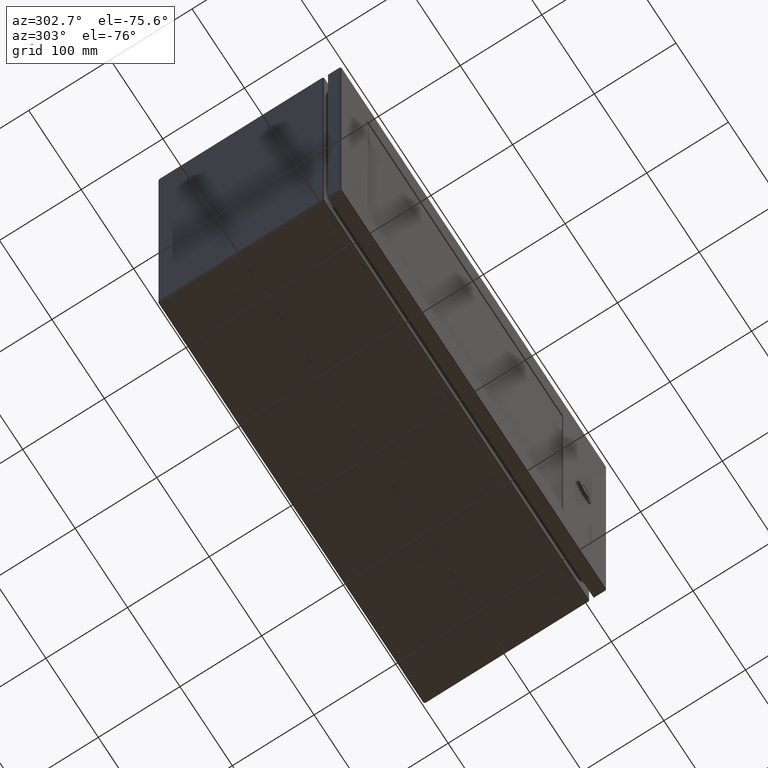
[diagram: clean part render]
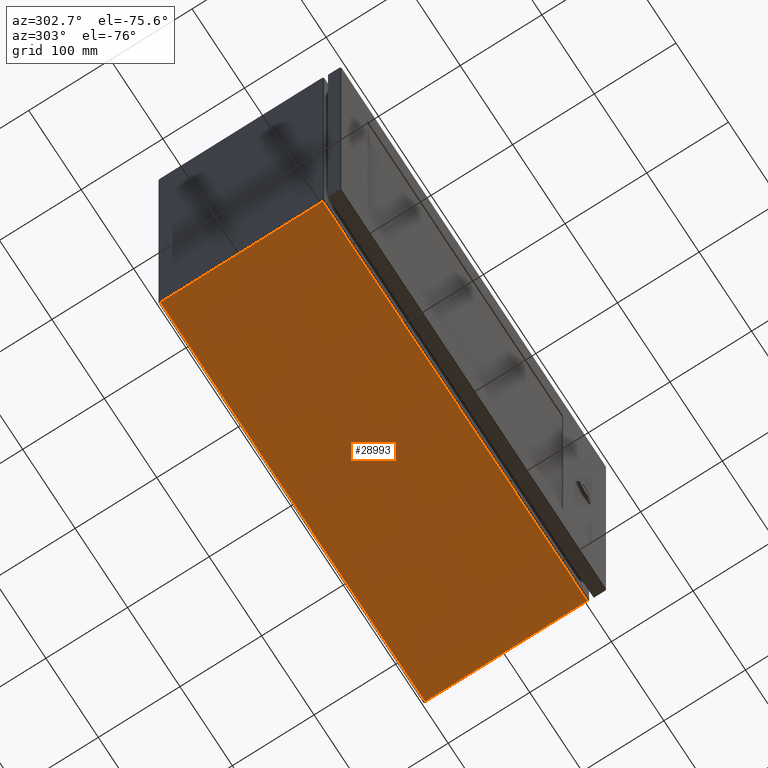
[diagram: same view with one face highlighted and labeled with its STEP entity id]
A machine part, auxiliary view. The second image highlights one B-rep face of the part: STEP entity #28993.
In plain terms, the highlighted planar face has unit normal (0, -0, 1).
Its self-contained STEP definition (entity closure, byte-faithful):
#151 = CARTESIAN_POINT ( 'NONE',  ( -69.44150000000000489, -7.914000000000000590, -10.00000000000000178 ) ) ;
#973 = CARTESIAN_POINT ( 'NONE',  ( 9.942888644601380221, -0.05700000000000000205, -10.00000000000000178 ) ) ;
#1227 = DIRECTION ( 'NONE',  ( -1.000000000000000000, 0.0000000000000000000, 0.0000000000000000000 ) ) ;
#1514 = ORIENTED_EDGE ( 'NONE', *, *, #36827, .F. ) ;
#2979 = CARTESIAN_POINT ( 'NONE',  ( 9.935226203677123280, -7.914000000000000590, -10.00000000000000000 ) ) ;
#4520 = VERTEX_POINT ( 'NONE', #29433 ) ;
#7025 = VERTEX_POINT ( 'NONE', #17508 ) ;
#7402 = DIRECTION ( 'NONE',  ( 0.0000000000000000000, -1.000000000000000000, -2.771339582717989839E-16 ) ) ;
#8173 = EDGE_CURVE ( 'NONE', #26829, #7025, #34319, .T. ) ;
#8254 = AXIS2_PLACEMENT_3D ( 'NONE', #12916, #32925, #16160 ) ;
#9473 = EDGE_LOOP ( 'NONE', ( #28803, #19223, #33743, #21734, #1514, #35990 ) ) ;
#9710 = VERTEX_POINT ( 'NONE', #20354 ) ;
#10274 = PLANE ( 'NONE',  #28418 ) ;
#11439 = DIRECTION ( 'NONE',  ( 0.0000000000000000000, -1.000000000000000000, -2.771339582717989839E-16 ) ) ;
#12916 = CARTESIAN_POINT ( 'NONE',  ( -9.692888644601415749, -7.852579258705134180, -10.00000000000003553 ) ) ;
#13165 = FACE_OUTER_BOUND ( 'NONE', #9473, .T. ) ;
#13350 = VECTOR ( 'NONE', #21408, 39.37007874015748143 ) ;
#14635 = LINE ( 'NONE', #151, #24053 ) ;
#16160 = DIRECTION ( 'NONE',  ( 0.0000000000000000000, -1.000000000000000000, 0.0000000000000000000 ) ) ;
#16243 = CARTESIAN_POINT ( 'NONE',  ( -9.942888644601380221, -0.08600000000000057598, -10.00000000000000000 ) ) ;
#16631 = EDGE_CURVE ( 'NONE', #9710, #26829, #27011, .T. ) ;
#17508 = CARTESIAN_POINT ( 'NONE',  ( -9.942888644601389103, -7.852579258705126186, -10.00000000000001776 ) ) ;
#17701 = DIRECTION ( 'NONE',  ( 1.000000000000000000, 8.722021821314907995E-33, -3.147222330928059765E-17 ) ) ;
#19223 = ORIENTED_EDGE ( 'NONE', *, *, #8173, .F. ) ;
#19860 = CARTESIAN_POINT ( 'NONE',  ( -9.942888644601380221, -0.05700000000000000205, -10.00000000000000178 ) ) ;
#20354 = CARTESIAN_POINT ( 'NONE',  ( 9.942888644601380221, -0.08599999999999831390, -10.00000000000000000 ) ) ;
#21408 = DIRECTION ( 'NONE',  ( -0.0000000000000000000, 1.000000000000000000, 2.771339582717989839E-16 ) ) ;
#21734 = ORIENTED_EDGE ( 'NONE', *, *, #33266, .F. ) ;
#22139 = CARTESIAN_POINT ( 'NONE',  ( -69.44150000000000489, -0.05700000000000000205, -10.00000000000000000 ) ) ;
#22343 = CIRCLE ( 'NONE', #24771, 0.2499999999999998057 ) ;
#23042 = VECTOR ( 'NONE', #1227, 39.37007874015748143 ) ;
#24053 = VECTOR ( 'NONE', #17701, 39.37007874015748143 ) ;
#24165 = CARTESIAN_POINT ( 'NONE',  ( 9.913999999999999702, -0.08600000000000117273, -9.999999999999998224 ) ) ;
#24771 = AXIS2_PLACEMENT_3D ( 'NONE', #32879, #32319, #32509 ) ;
#26829 = VERTEX_POINT ( 'NONE', #16243 ) ;
#27011 = LINE ( 'NONE', #24165, #23042 ) ;
#27674 = DIRECTION ( 'NONE',  ( 3.147222330928059765E-17, -2.771339582717989839E-16, 1.000000000000000000 ) ) ;
#28318 = EDGE_CURVE ( 'NONE', #7025, #4520, #32037, .T. ) ;
#28418 = AXIS2_PLACEMENT_3D ( 'NONE', #22139, #27674, #7402 ) ;
#28803 = ORIENTED_EDGE ( 'NONE', *, *, #28318, .F. ) ;
#28993 = ADVANCED_FACE ( 'NONE', ( #13165 ), #10274, .F. ) ;
#29433 = CARTESIAN_POINT ( 'NONE',  ( -9.935226203677142820, -7.914000000000000590, -10.00000000000001776 ) ) ;
#30361 = LINE ( 'NONE', #973, #13350 ) ;
#30609 = CARTESIAN_POINT ( 'NONE',  ( 9.942888644601380221, -7.852579258705126186, -10.00000000000000178 ) ) ;
#31471 = VECTOR ( 'NONE', #11439, 39.37007874015748143 ) ;
#31605 = VERTEX_POINT ( 'NONE', #2979 ) ;
#32037 = CIRCLE ( 'NONE', #8254, 0.2499999999999998057 ) ;
#32319 = DIRECTION ( 'NONE',  ( 3.147222330928059765E-17, -2.832769448823989808E-16, 1.000000000000000000 ) ) ;
#32509 = DIRECTION ( 'NONE',  ( 0.0000000000000000000, -1.000000000000000000, 0.0000000000000000000 ) ) ;
#32879 = CARTESIAN_POINT ( 'NONE',  ( 9.692888644601381998, -7.852579258705134180, -10.00000000000000000 ) ) ;
#32925 = DIRECTION ( 'NONE',  ( 3.147222330928059765E-17, -2.832769448823989808E-16, 1.000000000000000000 ) ) ;
#33266 = EDGE_CURVE ( 'NONE', #37021, #9710, #30361, .T. ) ;
#33743 = ORIENTED_EDGE ( 'NONE', *, *, #16631, .F. ) ;
#34319 = LINE ( 'NONE', #19860, #31471 ) ;
#35008 = EDGE_CURVE ( 'NONE', #4520, #31605, #14635, .T. ) ;
#35990 = ORIENTED_EDGE ( 'NONE', *, *, #35008, .F. ) ;
#36827 = EDGE_CURVE ( 'NONE', #31605, #37021, #22343, .T. ) ;
#37021 = VERTEX_POINT ( 'NONE', #30609 ) ;